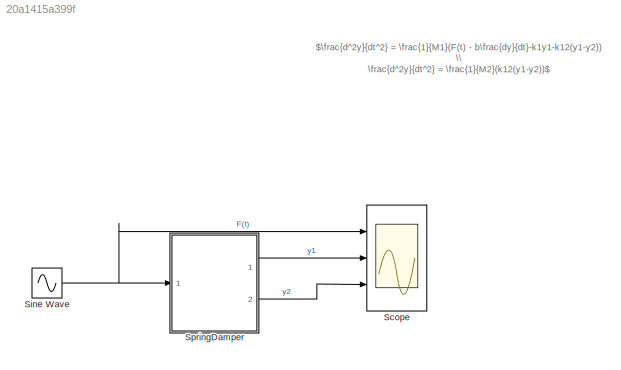
MODEL slx_20a1415a399f
KIND model
CONFIG AbsTol = auto
CONFIG EnableMultiTasking = off
CONFIG FixedStep = auto
CONFIG MaxStep = 0.002
CONFIG MinStep = auto
CONFIG RelTol = 1e-3
CONFIG SampleTimeConstraint = Unconstrained
CONFIG SolverName = VariableStepAuto
CONFIG StartTime = 0.0
CONFIG StopTime = 50
BLOCK [Scope] Scope
  Floating = off
  NumInputPorts = 3
  Ports = [3]
  ScopeSpecificationString = Simulink.scopes.TimeScopeBlockCfg('CurrentConfiguration', extmgr.ConfigurationSet(extmgr.Configuration('Core','General UI',true),extmgr.Configuration('Core','Source UI',true),extmgr.Configuration('Sources','WiredSimulink',true),extmgr.Configuration('Visuals','Time Domain',true,'SerializedDisplays',{struct('MinYLimReal','-2.5','MaxYLimReal','2.5','YLabelReal','','MinYLimMag','0.00000','MaxYLimMag',...<+2741ch>
BLOCK [Sin] Sine Wave
  Amplitude = 2
  Frequency = 10
  Ports = [0, 1]
  SampleTime = 0
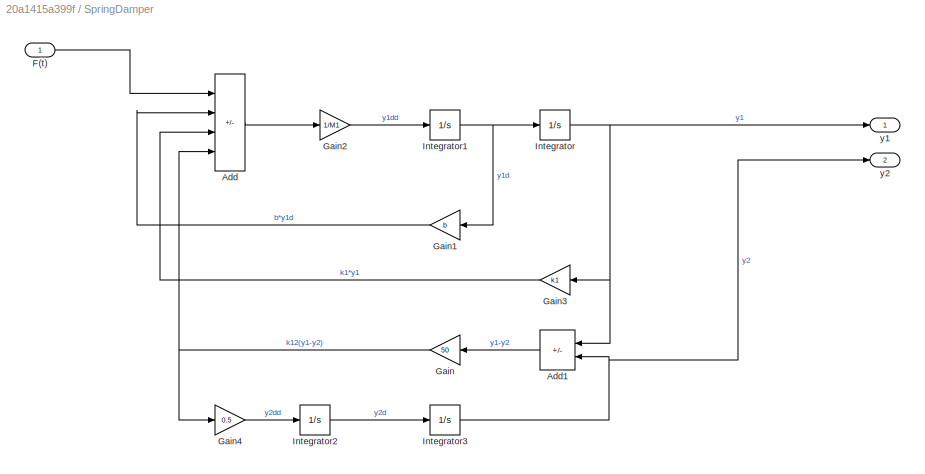
BLOCK [SubSystem] SpringDamper
  Ports = [1, 2]
  RequestExecContextInheritance = off
BLOCK [Sum] SpringDamper/Add
  IconShape = rectangular
  Inputs = +---
  Ports = [4, 1]
BLOCK [Sum] SpringDamper/Add1
  IconShape = rectangular
  Inputs = +-
  NameLocation = top
  Ports = [2, 1]
BLOCK [Inport] SpringDamper/F(t)
BLOCK [Gain] SpringDamper/Gain
  Gain = 50
  NameLocation = top
BLOCK [Gain] SpringDamper/Gain1
  Gain = b
  NameLocation = top
BLOCK [Gain] SpringDamper/Gain2
  Gain = 1/M1
BLOCK [Gain] SpringDamper/Gain3
  Gain = k1
  NameLocation = top
BLOCK [Gain] SpringDamper/Gain4
  Gain = 0.5
BLOCK [Integrator] SpringDamper/Integrator
  Ports = [1, 1]
BLOCK [Integrator] SpringDamper/Integrator1
  Ports = [1, 1]
BLOCK [Integrator] SpringDamper/Integrator2
  Ports = [1, 1]
BLOCK [Integrator] SpringDamper/Integrator3
  Ports = [1, 1]
BLOCK [Outport] SpringDamper/y1
BLOCK [Outport] SpringDamper/y2
  Port = 2
ANNOTATION (root): $\frac{d^2y}{dt^2} = \frac{1}{M1}(F(t) - b\frac{dy}{dt}-k1y1-k12(y1-y2)) \\ \frac{d^2y}{dt^2} = \frac{1}{M2}(k12(y1-y2))$
NET Sine Wave:1 -> Scope:1, SpringDamper:1
LINE SpringDamper/Add1:1 -> SpringDamper/Gain:1
LINE SpringDamper/Add:1 -> SpringDamper/Gain2:1
LINE SpringDamper/F(t):1 -> SpringDamper/Add:1
LINE SpringDamper/Gain1:1 -> SpringDamper/Add:2
LINE SpringDamper/Gain2:1 -> SpringDamper/Integrator1:1
LINE SpringDamper/Gain3:1 -> SpringDamper/Add:3
LINE SpringDamper/Gain4:1 -> SpringDamper/Integrator2:1
NET SpringDamper/Gain:1 -> SpringDamper/Add:4, SpringDamper/Gain4:1
NET SpringDamper/Integrator1:1 -> SpringDamper/Gain1:1, SpringDamper/Integrator:1
LINE SpringDamper/Integrator2:1 -> SpringDamper/Integrator3:1
NET SpringDamper/Integrator3:1 -> SpringDamper/Add1:2, SpringDamper/y2:1
NET SpringDamper/Integrator:1 -> SpringDamper/Add1:1, SpringDamper/Gain3:1, SpringDamper/y1:1
LINE SpringDamper:1 -> Scope:2
LINE SpringDamper:2 -> Scope:3
note: NET lines group one-source signal fan-out (src -> all destinations, sorted); 1:1 wires keep LINE
